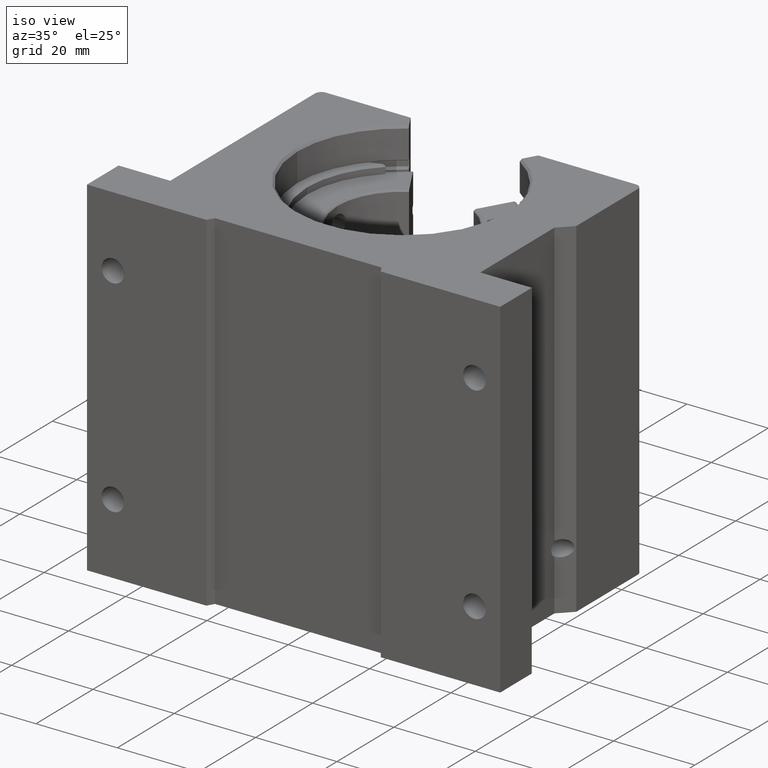
[diagram: clean part render]
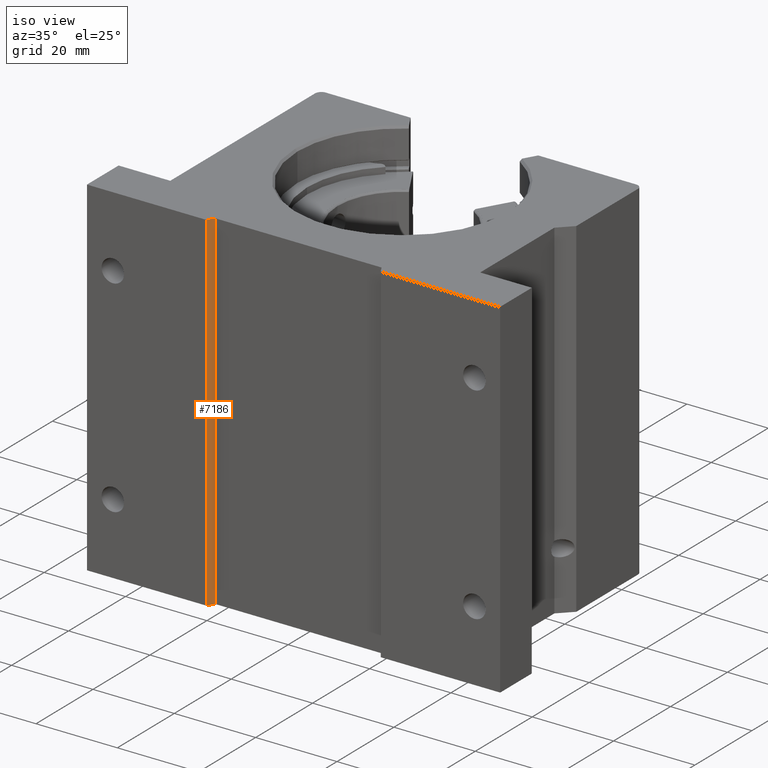
[diagram: same view with one face highlighted and labeled with its STEP entity id]
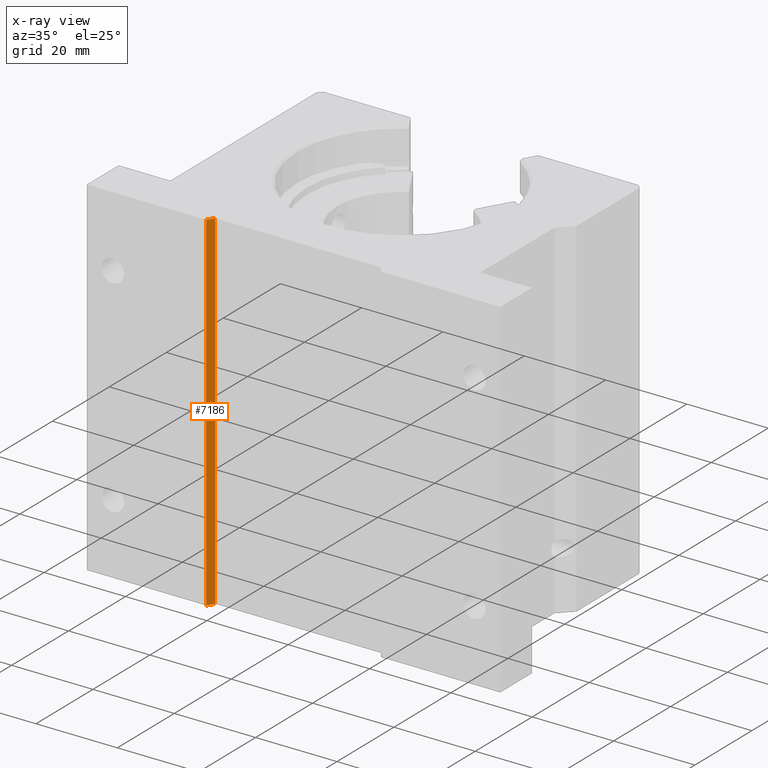
[diagram: x-ray of the same camera — body ghosted, the highlighted face saturated]
A machine part, iso view. The second image highlights one B-rep face of the part: STEP entity #7186.
The next image is the same camera in x-ray: the body ghosted, the highlighted face saturated — about 0% of this face is hidden behind the body in this view.
In plain terms, the highlighted planar face has unit normal (-0.866, 0.5, 0).
Its self-contained STEP definition (entity closure, byte-faithful):
#65 = VECTOR ( 'NONE', #563, 39.37007874015748143 ) ;
#139 = ORIENTED_EDGE ( 'NONE', *, *, #5930, .T. ) ;
#341 = CARTESIAN_POINT ( 'NONE',  ( -0.8434529946162074854, -1.500000000000000444, -1.687500000000000000 ) ) ;
#500 = VECTOR ( 'NONE', #3938, 39.37007874015748143 ) ;
#563 = DIRECTION ( 'NONE',  ( -0.5000000000000043299, -0.8660254037844360431, -0.000000000000000000 ) ) ;
#574 = CARTESIAN_POINT ( 'NONE',  ( -0.8059252271188812600, -1.435000000000000053, 1.687500000000000000 ) ) ;
#762 = AXIS2_PLACEMENT_3D ( 'NONE', #7328, #2252, #6764 ) ;
#815 = ORIENTED_EDGE ( 'NONE', *, *, #2453, .T. ) ;
#1637 = CARTESIAN_POINT ( 'NONE',  ( -0.8549999999999998712, -1.519999999999999796, 1.687500000000000000 ) ) ;
#1678 = LINE ( 'NONE', #5640, #500 ) ;
#1685 = FACE_OUTER_BOUND ( 'NONE', #2148, .T. ) ;
#1803 = ORIENTED_EDGE ( 'NONE', *, *, #4841, .F. ) ;
#1809 = VECTOR ( 'NONE', #5598, 39.37007874015748143 ) ;
#2148 = EDGE_LOOP ( 'NONE', ( #815, #5946, #1803, #139 ) ) ;
#2252 = DIRECTION ( 'NONE',  ( -0.8660254037844362651, 0.5000000000000043299, 0.000000000000000000 ) ) ;
#2453 = EDGE_CURVE ( 'NONE', #7181, #2798, #6711, .T. ) ;
#2798 = VERTEX_POINT ( 'NONE', #4205 ) ;
#2925 = LINE ( 'NONE', #6860, #2962 ) ;
#2962 = VECTOR ( 'NONE', #5705, 39.37007874015748854 ) ;
#3349 = LINE ( 'NONE', #6263, #1809 ) ;
#3938 = DIRECTION ( 'NONE',  ( 0.000000000000000000, 0.000000000000000000, -1.000000000000000000 ) ) ;
#4205 = CARTESIAN_POINT ( 'NONE',  ( -0.8434529946162071523, -1.499999999999999778, 1.687500000000000000 ) ) ;
#4679 = VERTEX_POINT ( 'NONE', #5089 ) ;
#4841 = EDGE_CURVE ( 'NONE', #4679, #6387, #2925, .T. ) ;
#5063 = PLANE ( 'NONE',  #762 ) ;
#5089 = CARTESIAN_POINT ( 'NONE',  ( -0.8059252271188812600, -1.435000000000000053, -1.687500000000000000 ) ) ;
#5598 = DIRECTION ( 'NONE',  ( -0.000000000000000000, -0.000000000000000000, 1.000000000000000000 ) ) ;
#5640 = CARTESIAN_POINT ( 'NONE',  ( -0.8434529946162071523, -1.499999999999999778, -1.687501968503936967 ) ) ;
#5705 = DIRECTION ( 'NONE',  ( -0.5000000000000042188, -0.8660254037844361541, 0.000000000000000000 ) ) ;
#5831 = EDGE_CURVE ( 'NONE', #2798, #6387, #1678, .T. ) ;
#5930 = EDGE_CURVE ( 'NONE', #4679, #7181, #3349, .T. ) ;
#5946 = ORIENTED_EDGE ( 'NONE', *, *, #5831, .T. ) ;
#6263 = CARTESIAN_POINT ( 'NONE',  ( -0.8059252271188812600, -1.435000000000000053, -1.687501968503936967 ) ) ;
#6387 = VERTEX_POINT ( 'NONE', #341 ) ;
#6711 = LINE ( 'NONE', #1637, #65 ) ;
#6764 = DIRECTION ( 'NONE',  ( -0.5000000000000042188, -0.8660254037844361541, 0.000000000000000000 ) ) ;
#6860 = CARTESIAN_POINT ( 'NONE',  ( 0.01692930687618082394, -0.009774139882156892070, -1.687500000000000000 ) ) ;
#7181 = VERTEX_POINT ( 'NONE', #574 ) ;
#7186 = ADVANCED_FACE ( 'NONE', ( #1685 ), #5063, .F. ) ;
#7328 = CARTESIAN_POINT ( 'NONE',  ( -0.8549999999999998712, -1.519999999999999796, -1.687501968503936967 ) ) ;